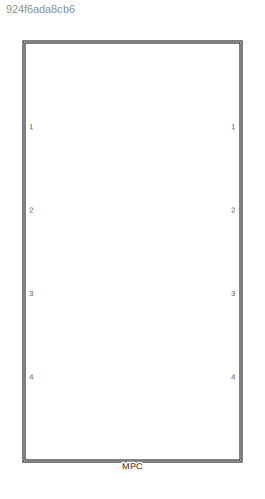
MODEL slx_924f6ada8cb6
KIND library
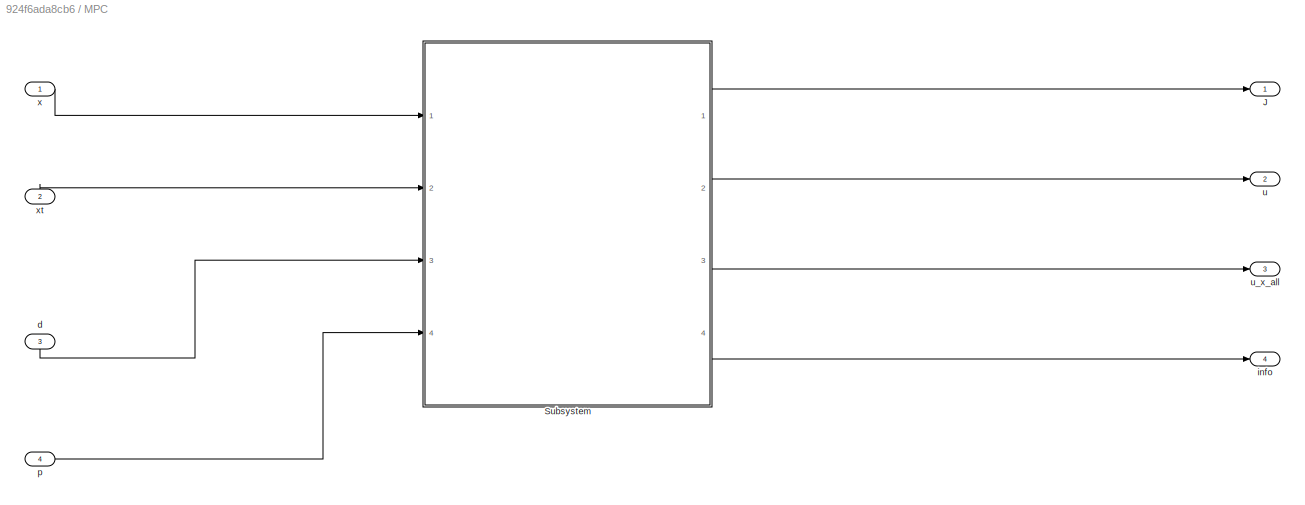
BLOCK [SubSystem] MPC
  Ports = [4, 4]
  RequestExecContextInheritance = off
  TreatAsAtomicUnit = on
BLOCK [Outport] MPC/J
  IconDisplay = Port number
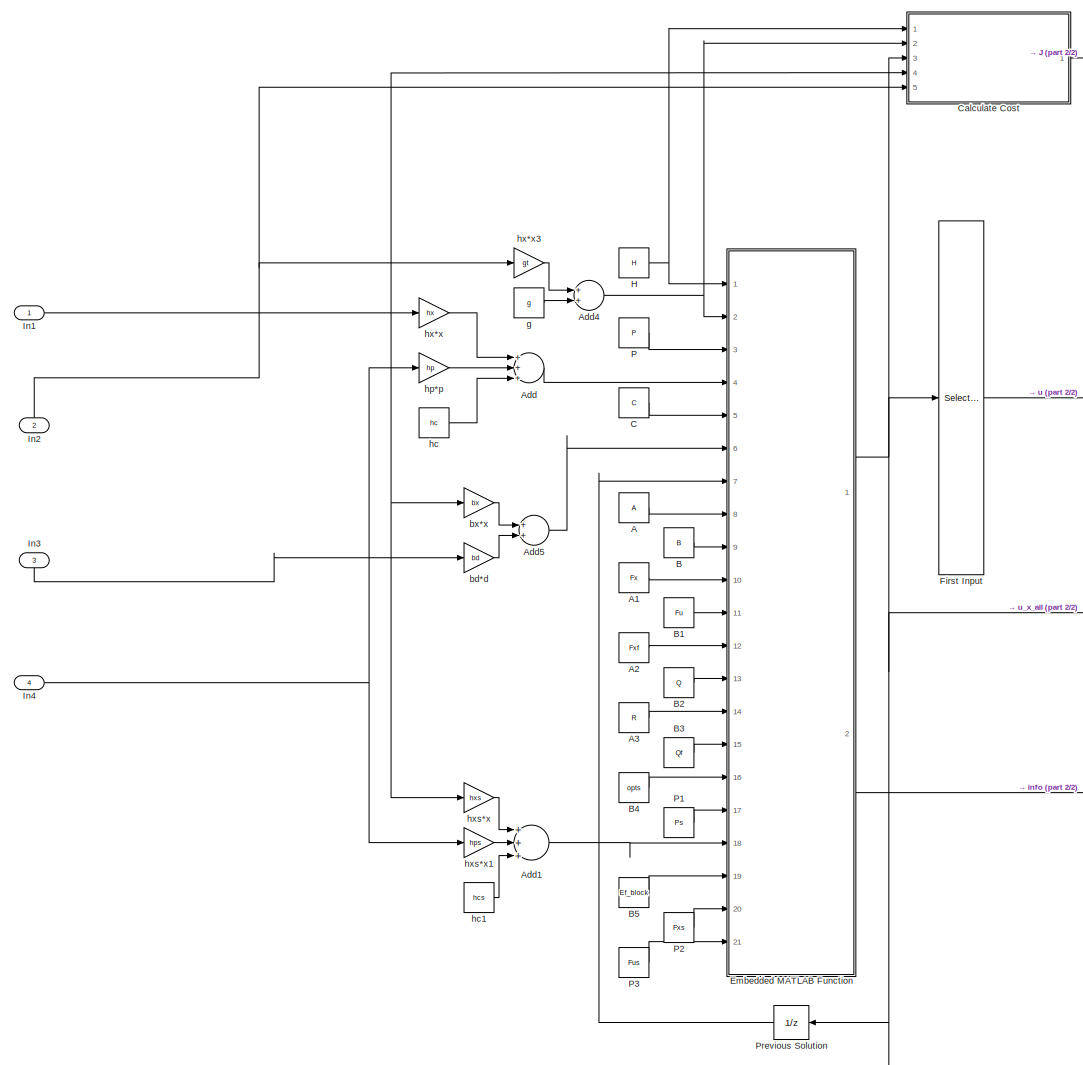
[diagram: MPC/Subsystem - part 1/2, most of the canvas]
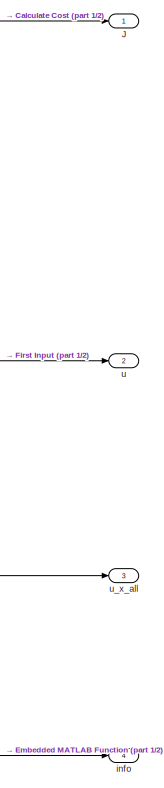
[diagram: MPC/Subsystem - part 2/2, middle right region]
BLOCK [SubSystem] MPC/Subsystem
  Ports = [4, 4]
  RequestExecContextInheritance = off
  SystemSampleTime = dt
  TreatAsAtomicUnit = on
BLOCK [Constant] MPC/Subsystem/A
  Value = A
BLOCK [Constant] MPC/Subsystem/A1
  Value = Fx
BLOCK [Constant] MPC/Subsystem/A2
  Value = Fxf
BLOCK [Constant] MPC/Subsystem/A3
  Value = R
BLOCK [Sum] MPC/Subsystem/Add
  InputSameDT = off
  Inputs = +++
  OutDataTypeStr = Inherit: Inherit via internal rule
  Ports = [3, 1]
  SaturateOnIntegerOverflow = off
BLOCK [Sum] MPC/Subsystem/Add1
  InputSameDT = off
  Inputs = +++
  OutDataTypeStr = Inherit: Inherit via internal rule
  Ports = [3, 1]
  SaturateOnIntegerOverflow = off
BLOCK [Sum] MPC/Subsystem/Add4
  InputSameDT = off
  OutDataTypeStr = Inherit: Inherit via internal rule
  Ports = [2, 1]
  SaturateOnIntegerOverflow = off
BLOCK [Sum] MPC/Subsystem/Add5
  InputSameDT = off
  OutDataTypeStr = Inherit: Inherit via internal rule
  Ports = [2, 1]
  SaturateOnIntegerOverflow = off
BLOCK [Constant] MPC/Subsystem/B
  Value = B
BLOCK [Constant] MPC/Subsystem/B1
  Value = Fu
BLOCK [Constant] MPC/Subsystem/B2
  Value = Q
BLOCK [Constant] MPC/Subsystem/B3
  Value = Qf
BLOCK [Constant] MPC/Subsystem/B4
  Value = opts
BLOCK [Constant] MPC/Subsystem/B5
  Value = Ef_block
BLOCK [Constant] MPC/Subsystem/C
  Value = C
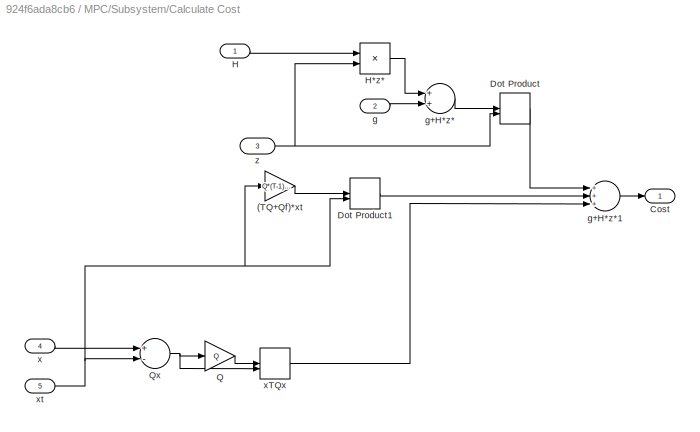
BLOCK [SubSystem] MPC/Subsystem/Calculate Cost
  Ports = [5, 1]
  RequestExecContextInheritance = off
BLOCK [Gain] MPC/Subsystem/Calculate Cost/(TQ+Qf)*xt
  Gain = Q*(T-1)+Qf
  Multiplication = Matrix(K*u)
  OutDataTypeStr = Inherit: Inherit via internal rule
  ParamDataTypeStr = Inherit: Inherit via internal rule
  SaturateOnIntegerOverflow = off
BLOCK [Outport] MPC/Subsystem/Calculate Cost/Cost
  IconDisplay = Port number
BLOCK [DotProduct] MPC/Subsystem/Calculate Cost/Dot Product
  OutDataTypeStr = Inherit: Inherit via internal rule
BLOCK [DotProduct] MPC/Subsystem/Calculate Cost/Dot Product1
  OutDataTypeStr = Inherit: Inherit via internal rule
BLOCK [Inport] MPC/Subsystem/Calculate Cost/H
  IconDisplay = Port number
BLOCK [Product] MPC/Subsystem/Calculate Cost/H*z*
  InputSameDT = off
  Multiplication = Matrix(*)
  OutDataTypeStr = Inherit: Inherit via internal rule
  Ports = [2, 1]
  SaturateOnIntegerOverflow = off
BLOCK [Gain] MPC/Subsystem/Calculate Cost/Q
  Gain = Q
  Multiplication = Matrix(K*u)
  OutDataTypeStr = Inherit: Inherit via internal rule
  ParamDataTypeStr = Inherit: Inherit via internal rule
  SaturateOnIntegerOverflow = off
BLOCK [Sum] MPC/Subsystem/Calculate Cost/Qx
  InputSameDT = off
  Inputs = +-
  OutDataTypeStr = Inherit: Inherit via internal rule
  Ports = [2, 1]
  SaturateOnIntegerOverflow = off
BLOCK [Inport] MPC/Subsystem/Calculate Cost/g
  IconDisplay = Port number
  Port = 2
BLOCK [Sum] MPC/Subsystem/Calculate Cost/g+H*z*
  InputSameDT = off
  OutDataTypeStr = Inherit: Inherit via internal rule
  Ports = [2, 1]
  SaturateOnIntegerOverflow = off
BLOCK [Sum] MPC/Subsystem/Calculate Cost/g+H*z*1
  InputSameDT = off
  Inputs = +++
  OutDataTypeStr = Inherit: Inherit via internal rule
  Ports = [3, 1]
  SaturateOnIntegerOverflow = off
BLOCK [Inport] MPC/Subsystem/Calculate Cost/x
  IconDisplay = Port number
  Port = 4
BLOCK [DotProduct] MPC/Subsystem/Calculate Cost/xTQx
  OutDataTypeStr = Inherit: Inherit via internal rule
BLOCK [Inport] MPC/Subsystem/Calculate Cost/xt
  IconDisplay = Port number
  Port = 5
BLOCK [Inport] MPC/Subsystem/Calculate Cost/z
  IconDisplay = Port number
  Port = 3
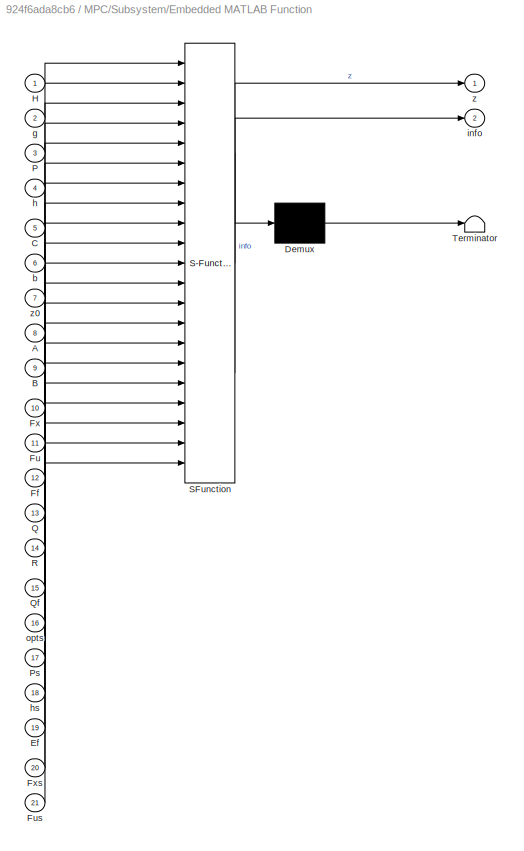
BLOCK [SubSystem] MPC/Subsystem/Embedded MATLAB Function
  ErrorFcn = Stateflow.Translate.translate
  PermitHierarchicalResolution = ExplicitOnly
  Ports = [21, 2]
  RTWFileNameOpts = Use subsystem name
  RequestExecContextInheritance = off
  SFBlockType = MATLAB Function
  TreatAsAtomicUnit = on
BLOCK [Demux] MPC/Subsystem/Embedded MATLAB Function/ Demux 
  Outputs = 1
  Ports = [1, 1]
BLOCK [S-Function] MPC/Subsystem/Embedded MATLAB Function/ SFunction 
  EnableBusSupport = on
  FunctionName = sf_sfun
  PortCounts = [21 3]
  Ports = [21, 3]
  Tag = Stateflow S-Function softmpc 1
BLOCK [Terminator] MPC/Subsystem/Embedded MATLAB Function/ Terminator 
BLOCK [Inport] MPC/Subsystem/Embedded MATLAB Function/A
  IconDisplay = Port number
  Port = 8
BLOCK [Inport] MPC/Subsystem/Embedded MATLAB Function/B
  IconDisplay = Port number
  Port = 9
BLOCK [Inport] MPC/Subsystem/Embedded MATLAB Function/C
  IconDisplay = Port number
  Port = 5
BLOCK [Inport] MPC/Subsystem/Embedded MATLAB Function/Ef
  IconDisplay = Port number
  Port = 19
BLOCK [Inport] MPC/Subsystem/Embedded MATLAB Function/Ff
  IconDisplay = Port number
  Port = 12
BLOCK [Inport] MPC/Subsystem/Embedded MATLAB Function/Fu
  IconDisplay = Port number
  Port = 11
BLOCK [Inport] MPC/Subsystem/Embedded MATLAB Function/Fus
  IconDisplay = Port number
  Port = 21
BLOCK [Inport] MPC/Subsystem/Embedded MATLAB Function/Fx
  IconDisplay = Port number
  Port = 10
BLOCK [Inport] MPC/Subsystem/Embedded MATLAB Function/Fxs
  IconDisplay = Port number
  Port = 20
BLOCK [Inport] MPC/Subsystem/Embedded MATLAB Function/H
  IconDisplay = Port number
BLOCK [Inport] MPC/Subsystem/Embedded MATLAB Function/P
  IconDisplay = Port number
  Port = 3
BLOCK [Inport] MPC/Subsystem/Embedded MATLAB Function/Ps
  IconDisplay = Port number
  Port = 17
BLOCK [Inport] MPC/Subsystem/Embedded MATLAB Function/Q
  IconDisplay = Port number
  Port = 13
BLOCK [Inport] MPC/Subsystem/Embedded MATLAB Function/Qf
  IconDisplay = Port number
  Port = 15
BLOCK [Inport] MPC/Subsystem/Embedded MATLAB Function/R
  IconDisplay = Port number
  Port = 14
BLOCK [Inport] MPC/Subsystem/Embedded MATLAB Function/b
  IconDisplay = Port number
  Port = 6
BLOCK [Inport] MPC/Subsystem/Embedded MATLAB Function/g
  IconDisplay = Port number
  Port = 2
BLOCK [Inport] MPC/Subsystem/Embedded MATLAB Function/h
  IconDisplay = Port number
  Port = 4
BLOCK [Inport] MPC/Subsystem/Embedded MATLAB Function/hs
  IconDisplay = Port number
  Port = 18
BLOCK [Outport] MPC/Subsystem/Embedded MATLAB Function/info
  IconDisplay = Port number
  Port = 2
BLOCK [Inport] MPC/Subsystem/Embedded MATLAB Function/opts
  IconDisplay = Port number
  Port = 16
BLOCK [Outport] MPC/Subsystem/Embedded MATLAB Function/z
  IconDisplay = Port number
BLOCK [Inport] MPC/Subsystem/Embedded MATLAB Function/z0
  IconDisplay = Port number
  Port = 7
BLOCK [Selector] MPC/Subsystem/First Input
  Indices = 1:size(B,2)
  InputPortWidth = size(H,1)
  Ports = [1, 1]
BLOCK [Constant] MPC/Subsystem/H
  Value = H
BLOCK [Inport] MPC/Subsystem/In1
  IconDisplay = Port number
BLOCK [Inport] MPC/Subsystem/In2
  IconDisplay = Port number
  Port = 2
BLOCK [Inport] MPC/Subsystem/In3
  IconDisplay = Port number
  Port = 3
BLOCK [Inport] MPC/Subsystem/In4
  IconDisplay = Port number
  Port = 4
BLOCK [Outport] MPC/Subsystem/J
  IconDisplay = Port number
BLOCK [Constant] MPC/Subsystem/P
  Value = P
BLOCK [Constant] MPC/Subsystem/P1
  Value = Ps
BLOCK [Constant] MPC/Subsystem/P2
  Value = Fxs
BLOCK [Constant] MPC/Subsystem/P3
  Value = Fus
BLOCK [UnitDelay] MPC/Subsystem/Previous Solution
  SampleTime = -1
BLOCK [Gain] MPC/Subsystem/bd*d
  Gain = bd
  Multiplication = Matrix(K*u)
  OutDataTypeStr = Inherit: Inherit via internal rule
  ParamDataTypeStr = Inherit: Inherit via internal rule
  SaturateOnIntegerOverflow = off
BLOCK [Gain] MPC/Subsystem/bx*x
  Gain = bx
  Multiplication = Matrix(K*u)
  OutDataTypeStr = Inherit: Inherit via internal rule
  ParamDataTypeStr = Inherit: Inherit via internal rule
  SaturateOnIntegerOverflow = off
BLOCK [Constant] MPC/Subsystem/g
  Value = g
BLOCK [Constant] MPC/Subsystem/hc
  Value = hc
BLOCK [Constant] MPC/Subsystem/hc1
  Value = hcs
BLOCK [Gain] MPC/Subsystem/hp*p
  Gain = hp
  Multiplication = Matrix(K*u)
  OutDataTypeStr = Inherit: Inherit via internal rule
  ParamDataTypeStr = Inherit: Inherit via internal rule
  SaturateOnIntegerOverflow = off
BLOCK [Gain] MPC/Subsystem/hx*x
  Gain = hx
  Multiplication = Matrix(K*u)
  OutDataTypeStr = Inherit: Inherit via internal rule
  ParamDataTypeStr = Inherit: Inherit via internal rule
  SaturateOnIntegerOverflow = off
BLOCK [Gain] MPC/Subsystem/hx*x3
  Gain = gt
  Multiplication = Matrix(K*u)
  OutDataTypeStr = Inherit: Inherit via internal rule
  ParamDataTypeStr = Inherit: Inherit via internal rule
  SaturateOnIntegerOverflow = off
BLOCK [Gain] MPC/Subsystem/hxs*x
  Gain = hxs
  Multiplication = Matrix(K*u)
  OutDataTypeStr = Inherit: Inherit via internal rule
  ParamDataTypeStr = Inherit: Inherit via internal rule
  SaturateOnIntegerOverflow = off
BLOCK [Gain] MPC/Subsystem/hxs*x1
  Gain = hps
  Multiplication = Matrix(K*u)
  OutDataTypeStr = Inherit: Inherit via internal rule
  ParamDataTypeStr = Inherit: Inherit via internal rule
  SaturateOnIntegerOverflow = off
BLOCK [Outport] MPC/Subsystem/info
  IconDisplay = Port number
  Port = 4
BLOCK [Outport] MPC/Subsystem/u
  IconDisplay = Port number
  Port = 2
BLOCK [Outport] MPC/Subsystem/u_x_all
  IconDisplay = Port number
  Port = 3
BLOCK [Inport] MPC/d
  IconDisplay = Port number
  Port = 3
BLOCK [Outport] MPC/info
  IconDisplay = Port number
  Port = 4
BLOCK [Inport] MPC/p
  IconDisplay = Port number
  Port = 4
BLOCK [Outport] MPC/u
  IconDisplay = Port number
  Port = 2
BLOCK [Outport] MPC/u_x_all
  IconDisplay = Port number
  Port = 3
BLOCK [Inport] MPC/x
  IconDisplay = Port number
BLOCK [Inport] MPC/xt
  IconDisplay = Port number
  Port = 2
LINE MPC/Subsystem/A1:1 -> MPC/Subsystem/Embedded MATLAB Function:10
LINE MPC/Subsystem/A2:1 -> MPC/Subsystem/Embedded MATLAB Function:12
LINE MPC/Subsystem/A3:1 -> MPC/Subsystem/Embedded MATLAB Function:14
LINE MPC/Subsystem/A:1 -> MPC/Subsystem/Embedded MATLAB Function:8
LINE MPC/Subsystem/Add1:1 -> MPC/Subsystem/Embedded MATLAB Function:18
NET MPC/Subsystem/Add4:1 -> MPC/Subsystem/Calculate Cost:2, MPC/Subsystem/Embedded MATLAB Function:2
LINE MPC/Subsystem/Add5:1 -> MPC/Subsystem/Embedded MATLAB Function:6
LINE MPC/Subsystem/Add:1 -> MPC/Subsystem/Embedded MATLAB Function:4
LINE MPC/Subsystem/B1:1 -> MPC/Subsystem/Embedded MATLAB Function:11
LINE MPC/Subsystem/B2:1 -> MPC/Subsystem/Embedded MATLAB Function:13
LINE MPC/Subsystem/B3:1 -> MPC/Subsystem/Embedded MATLAB Function:15
LINE MPC/Subsystem/B4:1 -> MPC/Subsystem/Embedded MATLAB Function:16
LINE MPC/Subsystem/B5:1 -> MPC/Subsystem/Embedded MATLAB Function:19
LINE MPC/Subsystem/B:1 -> MPC/Subsystem/Embedded MATLAB Function:9
LINE MPC/Subsystem/C:1 -> MPC/Subsystem/Embedded MATLAB Function:5
LINE MPC/Subsystem/Calculate Cost/(TQ+Qf)*xt:1 -> MPC/Subsystem/Calculate Cost/Dot Product1:1
LINE MPC/Subsystem/Calculate Cost/Dot Product1:1 -> MPC/Subsystem/Calculate Cost/g+H*z*1:2
LINE MPC/Subsystem/Calculate Cost/Dot Product:1 -> MPC/Subsystem/Calculate Cost/g+H*z*1:1
LINE MPC/Subsystem/Calculate Cost/H*z*:1 -> MPC/Subsystem/Calculate Cost/g+H*z*:1
LINE MPC/Subsystem/Calculate Cost/H:1 -> MPC/Subsystem/Calculate Cost/H*z*:1
LINE MPC/Subsystem/Calculate Cost/Q:1 -> MPC/Subsystem/Calculate Cost/xTQx:1
NET MPC/Subsystem/Calculate Cost/Qx:1 -> MPC/Subsystem/Calculate Cost/Q:1, MPC/Subsystem/Calculate Cost/xTQx:2
LINE MPC/Subsystem/Calculate Cost/g+H*z*1:1 -> MPC/Subsystem/Calculate Cost/Cost:1
LINE MPC/Subsystem/Calculate Cost/g+H*z*:1 -> MPC/Subsystem/Calculate Cost/Dot Product:1
LINE MPC/Subsystem/Calculate Cost/g:1 -> MPC/Subsystem/Calculate Cost/g+H*z*:2
LINE MPC/Subsystem/Calculate Cost/x:1 -> MPC/Subsystem/Calculate Cost/Qx:1
LINE MPC/Subsystem/Calculate Cost/xTQx:1 -> MPC/Subsystem/Calculate Cost/g+H*z*1:3
NET MPC/Subsystem/Calculate Cost/xt:1 -> MPC/Subsystem/Calculate Cost/(TQ+Qf)*xt:1, MPC/Subsystem/Calculate Cost/Dot Product1:2, MPC/Subsystem/Calculate Cost/Qx:2
NET MPC/Subsystem/Calculate Cost/z:1 -> MPC/Subsystem/Calculate Cost/Dot Product:2, MPC/Subsystem/Calculate Cost/H*z*:2
LINE MPC/Subsystem/Calculate Cost:1 -> MPC/Subsystem/J:1
NET MPC/Subsystem/Embedded MATLAB Function:1 -> MPC/Subsystem/Calculate Cost:3, MPC/Subsystem/First Input:1, MPC/Subsystem/Previous Solution:1, MPC/Subsystem/u_x_all:1
LINE MPC/Subsystem/Embedded MATLAB Function:2 -> MPC/Subsystem/info:1
LINE MPC/Subsystem/First Input:1 -> MPC/Subsystem/u:1
NET MPC/Subsystem/H:1 -> MPC/Subsystem/Calculate Cost:1, MPC/Subsystem/Embedded MATLAB Function:1
NET MPC/Subsystem/In1:1 -> MPC/Subsystem/Calculate Cost:4, MPC/Subsystem/bx*x:1, MPC/Subsystem/hx*x:1, MPC/Subsystem/hxs*x:1
NET MPC/Subsystem/In2:1 -> MPC/Subsystem/Calculate Cost:5, MPC/Subsystem/hx*x3:1
LINE MPC/Subsystem/In3:1 -> MPC/Subsystem/bd*d:1
NET MPC/Subsystem/In4:1 -> MPC/Subsystem/hp*p:1, MPC/Subsystem/hxs*x1:1
LINE MPC/Subsystem/P1:1 -> MPC/Subsystem/Embedded MATLAB Function:17
LINE MPC/Subsystem/P2:1 -> MPC/Subsystem/Embedded MATLAB Function:20
LINE MPC/Subsystem/P3:1 -> MPC/Subsystem/Embedded MATLAB Function:21
LINE MPC/Subsystem/P:1 -> MPC/Subsystem/Embedded MATLAB Function:3
LINE MPC/Subsystem/Previous Solution:1 -> MPC/Subsystem/Embedded MATLAB Function:7
LINE MPC/Subsystem/bd*d:1 -> MPC/Subsystem/Add5:2
LINE MPC/Subsystem/bx*x:1 -> MPC/Subsystem/Add5:1
LINE MPC/Subsystem/g:1 -> MPC/Subsystem/Add4:2
LINE MPC/Subsystem/hc1:1 -> MPC/Subsystem/Add1:3
LINE MPC/Subsystem/hc:1 -> MPC/Subsystem/Add:3
LINE MPC/Subsystem/hp*p:1 -> MPC/Subsystem/Add:2
LINE MPC/Subsystem/hx*x3:1 -> MPC/Subsystem/Add4:1
LINE MPC/Subsystem/hx*x:1 -> MPC/Subsystem/Add:1
LINE MPC/Subsystem/hxs*x1:1 -> MPC/Subsystem/Add1:2
LINE MPC/Subsystem/hxs*x:1 -> MPC/Subsystem/Add1:1
LINE MPC/Subsystem:1 -> MPC/J:1
LINE MPC/Subsystem:2 -> MPC/u:1
LINE MPC/Subsystem:3 -> MPC/u_x_all:1
LINE MPC/Subsystem:4 -> MPC/info:1
LINE MPC/d:1 -> MPC/Subsystem:3
LINE MPC/p:1 -> MPC/Subsystem:4
LINE MPC/x:1 -> MPC/Subsystem:1
LINE MPC/xt:1 -> MPC/Subsystem:2
note: NET lines group one-source signal fan-out (src -> all destinations, sorted); 1:1 wires keep LINE
